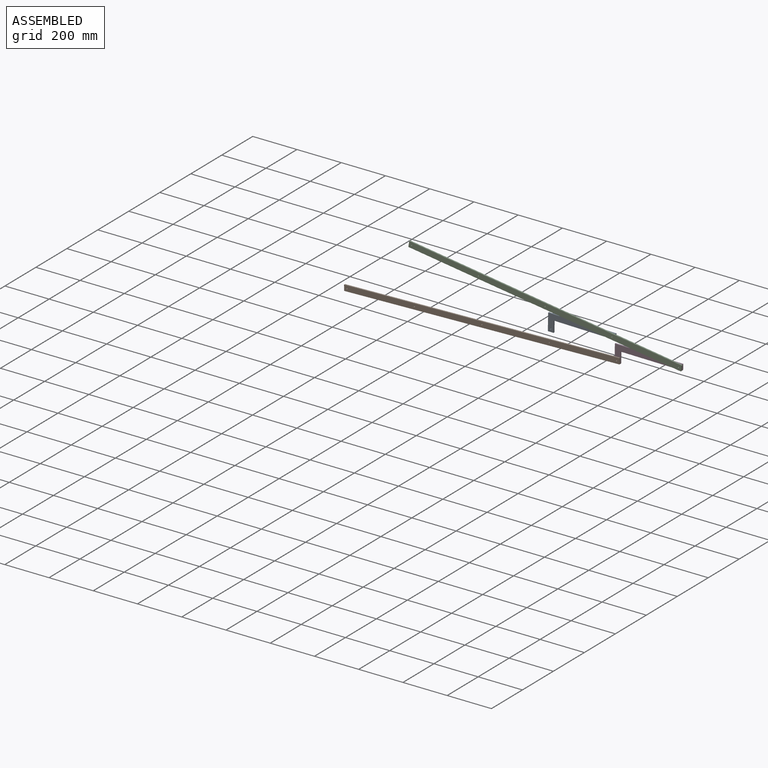
[diagram: assembled view]
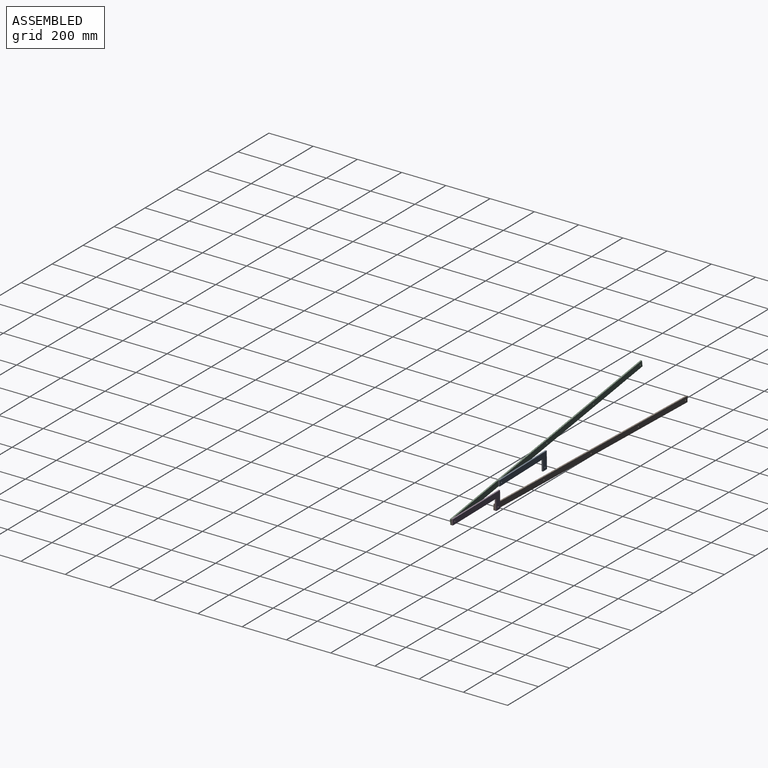
[diagram: assembled view, second angle]
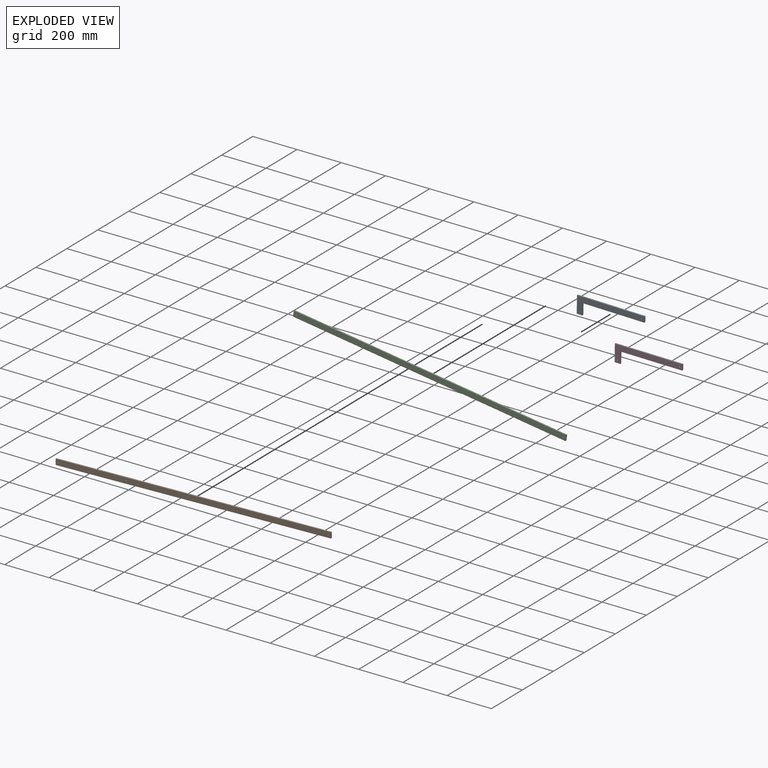
[diagram: exploded view]
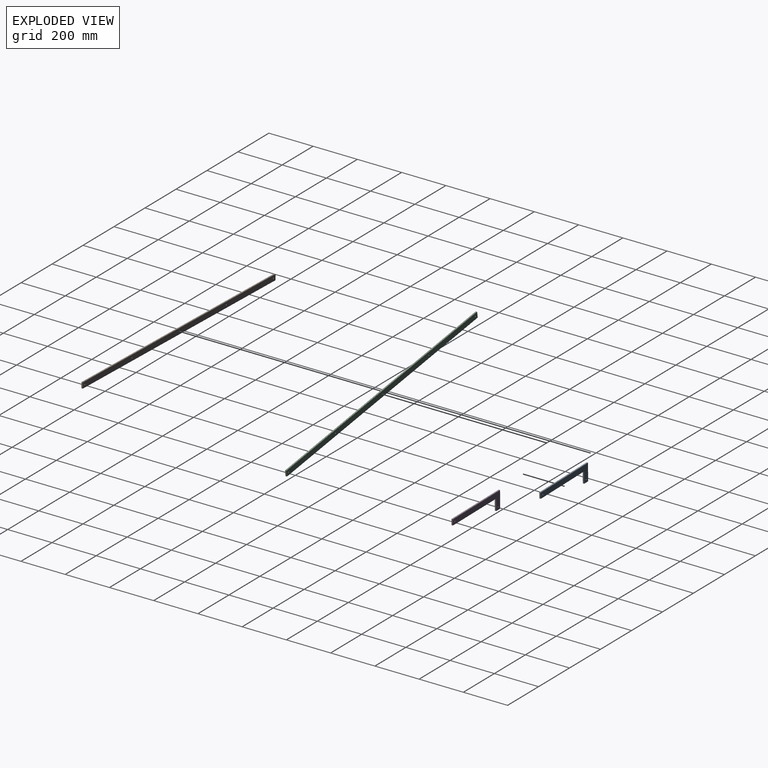
[diagram: exploded view, second angle]
ASSEMBLY  parts=4 mates=3
PART A: 10 faces, bbox 304.8x6.4x76.2 mm
  f0: plane 279.4x6.35mm, normal (0,0,-1), area 1774.2mm2, adj f1,f7,f8,f9
  f1: plane 25.4x6.35mm, normal (1,0,0), area 161.3mm2, adj f0,f2,f8,f9
  f2: plane 304.8x6.35mm, normal (0,0,1), area 1935.5mm2, adj f1,f3,f8,f9
  f3: plane 76.2x6.35mm, normal (-1,0,0), area 483.9mm2, adj f2,f4,f8,f9
  f4: plane 25.4x6.35mm, normal (0,0,-1), area 161.3mm2, adj f3,f7,f8,f9
  f5: cylinder r=2.54mm len=6.35mm, axis (0,1,0), area 101.3mm2, adj f8,f9
  f6: cylinder r=2.54mm len=6.35mm, axis (0,1,0), area 101.3mm2, adj f8,f9
  f7: plane 50.8x6.35mm, normal (1,0,0), area 322.6mm2, adj f0,f4,f8,f9
  f8: plane 304.8x76.2mm, normal (0,-1,0), area 8991.7mm2, adj f0,f1,f2,f3,f4,f5,f6,f7
  f9: plane 304.8x76.2mm, normal (0,1,0), area 8991.7mm2, adj f0,f1,f2,f3,f4,f5,f6,f7
PART B: 11 faces, bbox 25.4x6.4x1244.6 mm
  f0: plane 25.4x6.35mm, normal (0,0,-1), area 161.3mm2, adj f1,f8,f9,f10
  f1: plane 1244.6x6.35mm, normal (1,0,0), area 7903.2mm2, adj f0,f2,f9,f10
  f2: plane 25.4x6.35mm, normal (0,0,1), area 161.3mm2, adj f1,f8,f9,f10
  f3: cylinder r=2.54mm len=6.35mm, axis (0,1,0), area 101.3mm2, adj f9,f10
  f4: cylinder r=2.54mm len=6.35mm, axis (0,1,0), area 101.3mm2, adj f9,f10
  f5: cylinder r=2.54mm len=6.35mm, axis (0,1,0), area 101.3mm2, adj f9,f10
  f6: cylinder r=2.54mm len=6.35mm, axis (0,1,0), area 101.3mm2, adj f9,f10
  f7: cylinder r=2.54mm len=6.35mm, axis (0,1,0), area 101.3mm2, adj f9,f10
  f8: plane 1244.6x6.35mm, normal (-1,0,0), area 7903.2mm2, adj f0,f2,f9,f10
  f9: plane 1244.6x25.4mm, normal (0,-1,0), area 31511.5mm2, adj f0,f1,f2,f3,f4,f5,f6,f7
  f10: plane 1244.6x25.4mm, normal (0,1,0), area 31511.5mm2, adj f0,f1,f2,f3,f4,f5,f6,f7
PART C: same geometry as B
PART D: same geometry as A
PLACE A rot(axis=(0,1,0),1.1deg) t=(-893.55,-142.88,34.63)mm
PLACE B rot(axis=(0,-1,0),91.5deg) t=(-962.43,-149.23,-174.2)mm
PLACE C rot(axis=(0,-1,0),81.7deg) t=(-688.17,-149.23,-112.98)mm
PLACE D rot(axis=(0,1,0),0.6deg) t=(-592.53,-142.88,-9.18)mm fixed
MATE revolute B.f7 <-> D.f6  axis (0,-1,0) through (-886.05,-155.58,-134.11)mm
MATE revolute C.f3 <-> A.f5  axis (0,-1,0) through (-907.72,-155.58,-42.51)mm
MATE revolute C.f7 <-> D.f5  axis (0,-1,0) through (-606.1,-155.58,-86.43)mm
